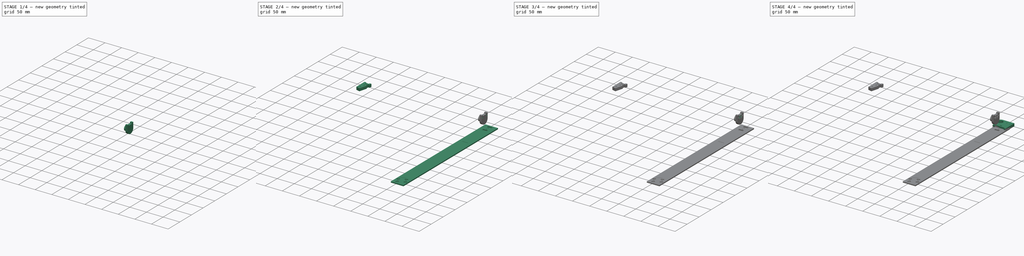
[diagram: build sequence overview — one tinted view per stage of 4, left to right]
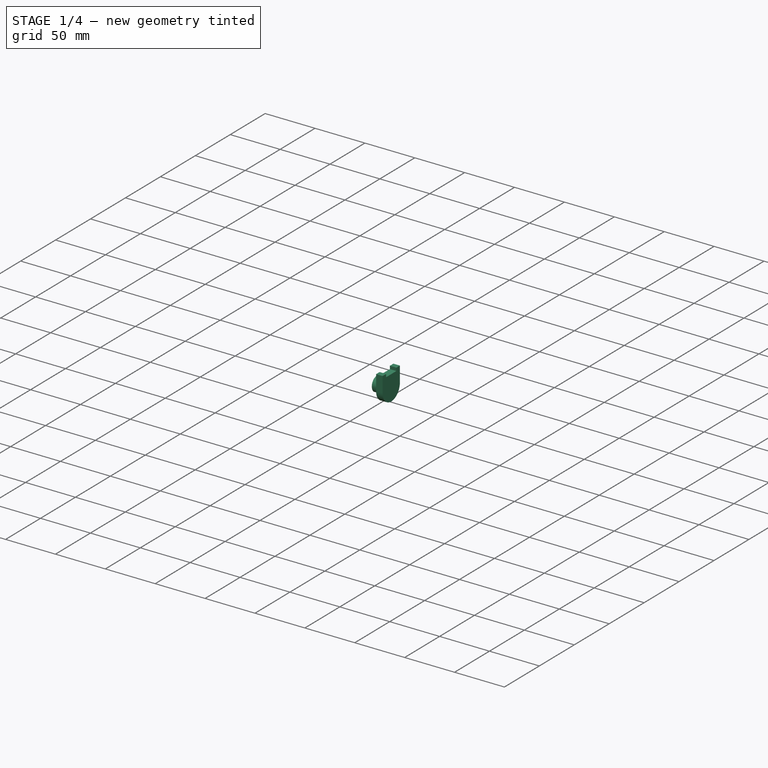
[diagram: stage 1 of 4 — iso view after this stage's code; geometry added in this stage tinted green]
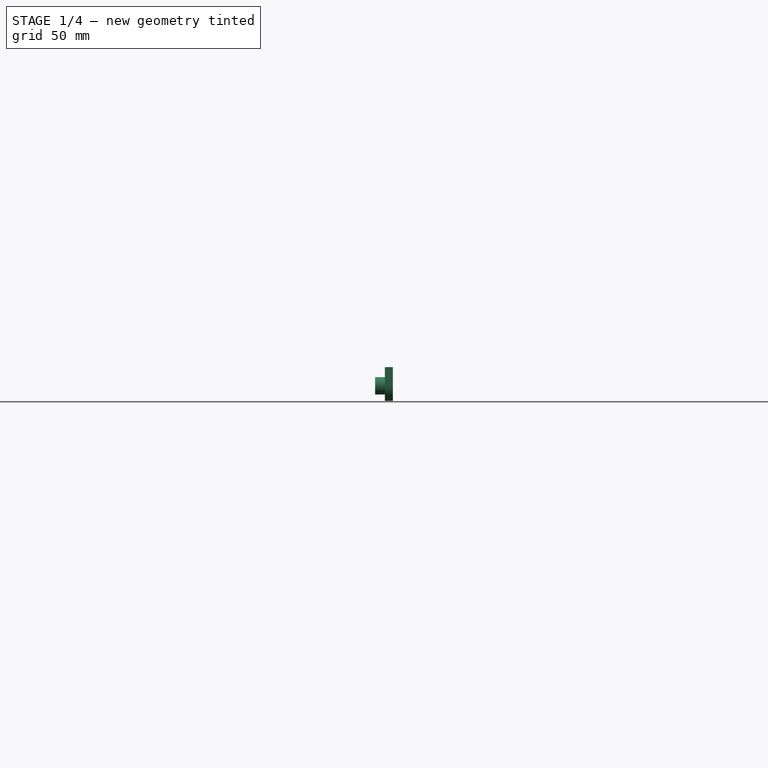
[diagram: stage 1 of 4 — front view after this stage's code; geometry added in this stage tinted green]
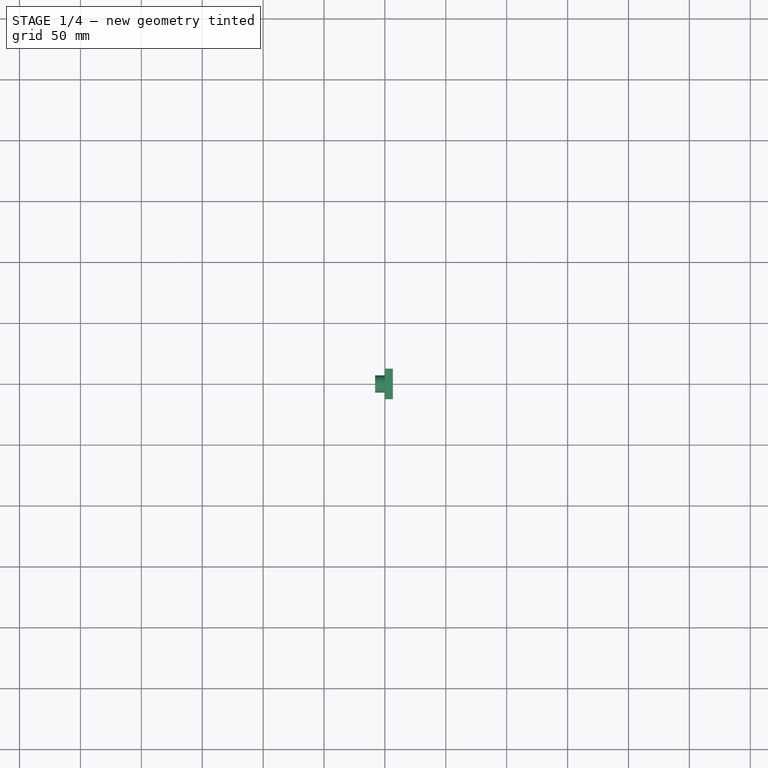
[diagram: stage 1 of 4 — top view after this stage's code; geometry added in this stage tinted green]
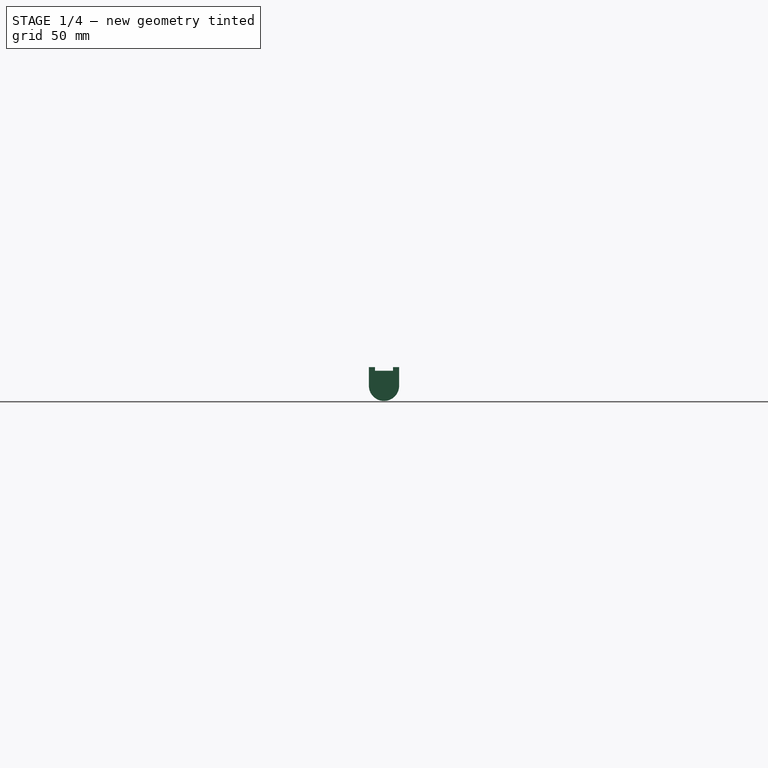
[diagram: stage 1 of 4 — right view after this stage's code; geometry added in this stage tinted green]
FCSTD DOCUMENT  (FreeCAD 0.19R24291 (Git))
Label: ri-hinge01
License: All rights reserved
LicenseURL: http://en.wikipedia.org/wiki/All_rights_reserved
objects: Sketcher::SketchObject×9, PartDesign::Pad×5, PartDesign::Body×4, PartDesign::Pocket×4, PartDesign::Chamfer×1
note: 33 computed .brp shape members not serialized (recipe doc carries the construction recipe); baked Part::Feature solids carry a one-line shape summary decoded from their .brp

FEATURE [PartDesign::Body] Body  label="holder"
  Group = -> [Sketch,Pad]
  Origin = -> Origin
  Tip = -> Pad
FEATURE [Sketcher::SketchObject] Sketch001
  FullyConstrained = true
  MapMode = 5
  Placement = pos=(0,0,0) rot=(0.57735,0.57735,0.57735;2.0944rad)
  Support = -> [YZ_Plane001]
  expr: Constraints[22] = <<Sketch>>.Constraints.distance
  expr: Constraints[14] = <<Sketch>>.Constraints.height + <<Sketch>>.Constraints.baseplate
  expr: Constraints[21] = <<Sketch>>.Constraints.height + <<Sketch>>.Constraints.baseplate - <<Sketch>>.Constraints.distance
  expr: Constraints[15] = <<Sketch>>.Constraints.base
  expr: Constraints[13] = <<Sketch>>.Constraints.baseplate
  sketch-geometry (9):
    g0: LineSegment StartX=12.4 StartY=24.6 StartZ=0 EndX=12.4 EndY=40 EndZ=0
    g1: LineSegment StartX=12.4 StartY=40 StartZ=0 EndX=7.4 EndY=40 EndZ=0
    g2: LineSegment StartX=7.4 StartY=40 StartZ=0 EndX=7.4 EndY=37 EndZ=0
    g3: LineSegment StartX=7.4 StartY=37 StartZ=0 EndX=-7.4 EndY=37 EndZ=0
    g4: LineSegment StartX=-7.4 StartY=37 StartZ=0 EndX=-7.4 EndY=40 EndZ=0
    g5: LineSegment StartX=-7.4 StartY=40 StartZ=0 EndX=-12.4 EndY=40 EndZ=0
    g6: LineSegment StartX=-12.4 StartY=40 StartZ=0 EndX=-12.4 EndY=24.6 EndZ=0
    g7: ArcOfCircle CenterX=0 CenterY=24.6 CenterZ=0 NormalX=0 NormalY=0 NormalZ=1 AngleXU=0 Radius=12.4 StartAngle=3.14159 EndAngle=6.28319
    g8: GeomPoint X=0 Y=24.6 Z=0
  constraints (24):
    c: Vertical(g0)
    c: Coincident(g0,g1)
    c: Horizontal(g1)
    c: Coincident(g1,g2)
    c: Vertical(g2)
    c: Coincident(g2,g3)
    c: Horizontal(g3)
    c: Coincident(g3,g4)
    c: Vertical(g4)
    c: Coincident(g4,g5)
    c: Horizontal(g5)
    c: Equal(g1,g5)
    c: Equal(g2,g4)
    c: DistanceY(g4,g4) = 3
    c: DistanceY(g-1,g3) = 37
    c: DistanceX(g5,g5) = 5
    c: Coincident(g6,g5)
    c: Vertical(g6)
    c: PointOnObject(g7,g-2)
    c: Tangent(g0,g7) = -1.5708
    c: Tangent(g7,g6) = -1.5708
    c: DistanceY(g-1,g8) = 24.6
    c: DistanceX(g8,g0) = 12.4
    c: Coincident(g7,g8)
FEATURE [PartDesign::Pad] Pad001
  Direction = (1,1,1)
  Length = 6.5
  Length2 = 100
  Placement = pos=(0,0,0) rot=(0.57735,0.57735,0.57735;2.0944rad)
  Profile = -> Sketch001
  Refine = true
  Type = 0
  expr: Length = 6.5mm
FEATURE [Sketcher::SketchObject] Sketch002
  FullyConstrained = true
  MapMode = 5
  Placement = pos=(-1e-16,0,0) rot=(0.57735,0.57735,-0.57735;4.18879rad)
  Support = -> [Pad001]
  expr: Constraints[1] = <<Sketch>>.Constraints.diameter - 0.6mm
  expr: Constraints[2] = <<Sketch>>.Constraints.height + <<Sketch>>.Constraints.baseplate - <<Sketch>>.Constraints.distance
  sketch-geometry (1):
    g0: Circle CenterX=0 CenterY=-24.6 CenterZ=0 NormalX=0 NormalY=0 NormalZ=1 AngleXU=0 Radius=7.1
  constraints (3):
    c: PointOnObject(g0,g-2)
    c: Diameter(g0) = 14.2
    c: DistanceY(g0,g-1) = 24.6
FEATURE [PartDesign::Pad] Pad002
  BaseFeature = -> Pad001
  Direction = (1,1,1)
  Length = 8
  Length2 = 100
  Placement = pos=(0,0,0) rot=(0.57735,0.57735,0.57735;2.0944rad)
  Profile = -> Sketch002
  Refine = true
  Type = 0
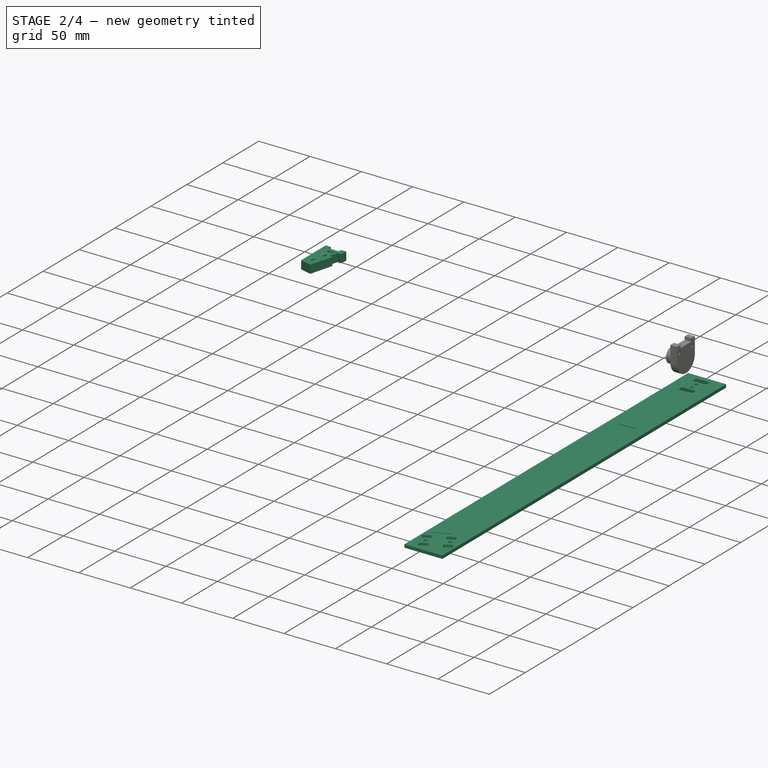
[diagram: stage 2 of 4 — iso view after this stage's code; geometry added in this stage tinted green]
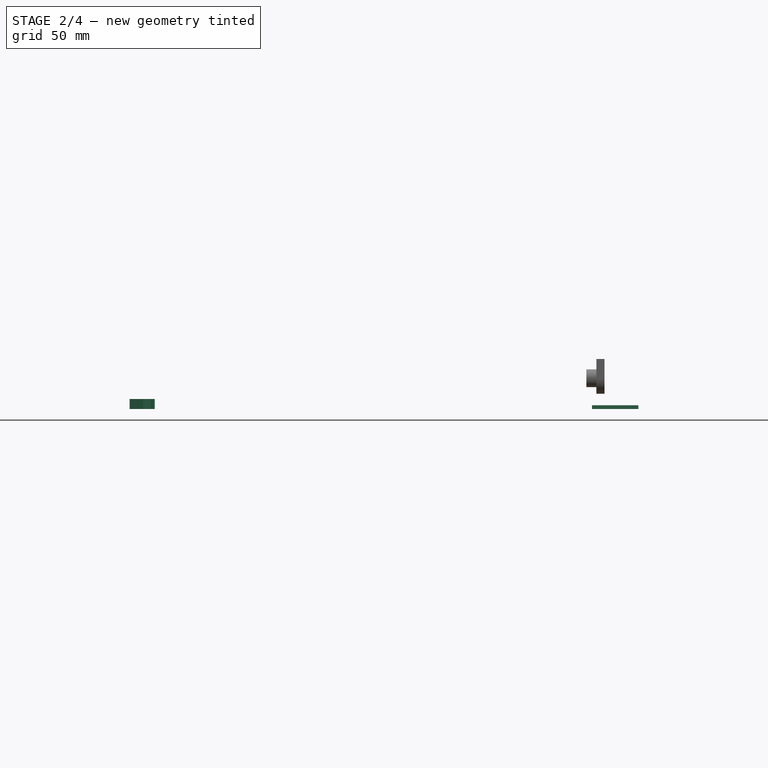
[diagram: stage 2 of 4 — front view after this stage's code; geometry added in this stage tinted green]
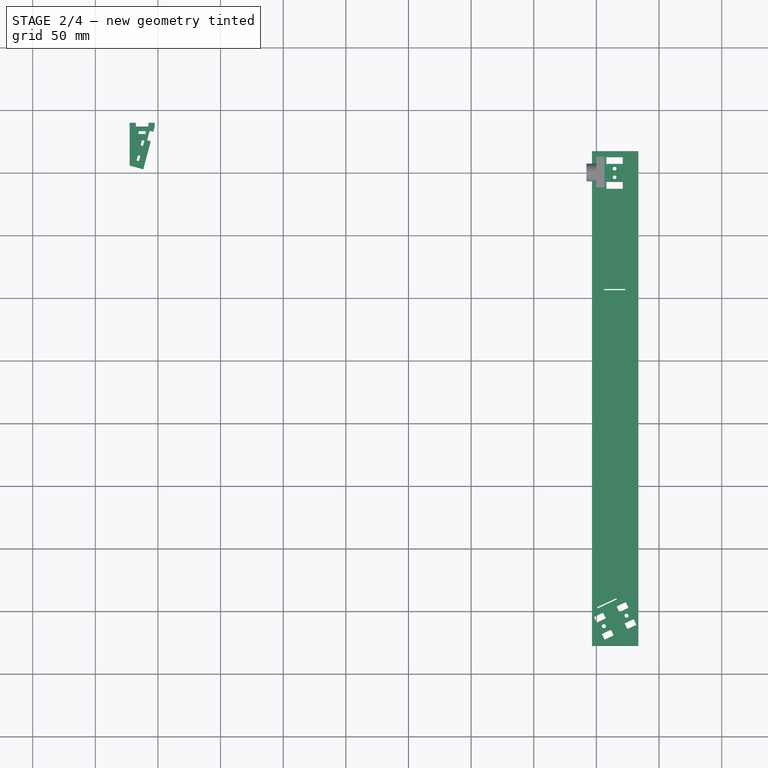
[diagram: stage 2 of 4 — top view after this stage's code; geometry added in this stage tinted green]
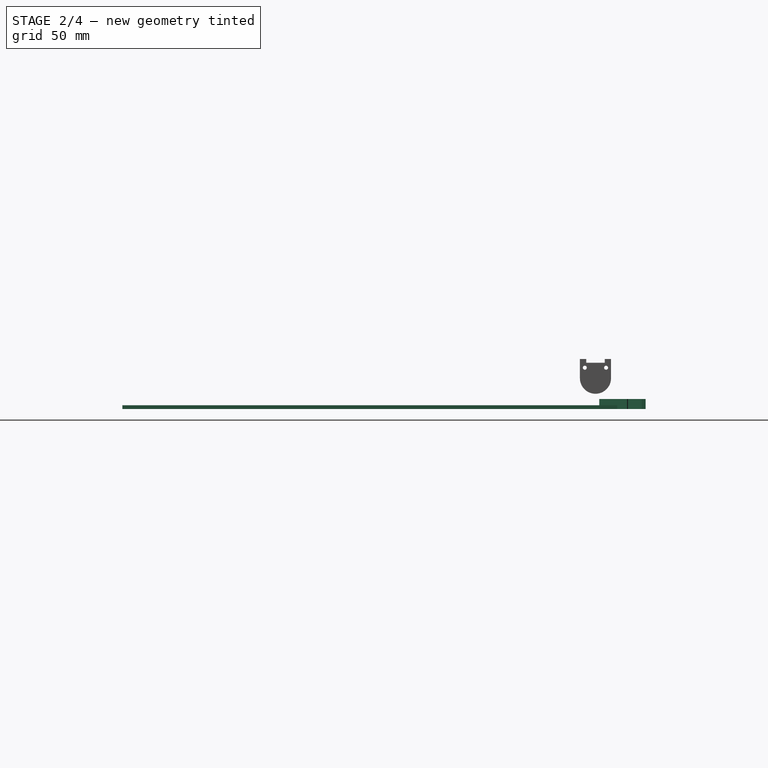
[diagram: stage 2 of 4 — right view after this stage's code; geometry added in this stage tinted green]
FEATURE [Sketcher::SketchObject] Sketch003
  FullyConstrained = true
  MapMode = 5
  Placement = pos=(6.5,-1.4e-15,1.4e-15) rot=(0.57735,0.57735,0.57735;2.0944rad)
  Support = -> [Pad002]
  expr: .Constraints.holeheight = <<Sketch>>.Constraints.height - 1mm
  expr: .Constraints.holewidth = 17mm
  sketch-geometry (2):
    g0: Circle CenterX=8.5 CenterY=33 CenterZ=0 NormalX=0 NormalY=0 NormalZ=1 AngleXU=0 Radius=1.6
    g1: Circle CenterX=-8.5 CenterY=33 CenterZ=0 NormalX=0 NormalY=0 NormalZ=1 AngleXU=0 Radius=1.6
  constraints (5):
    c: Equal(g1,g0)
    c: Diameter(g1) = 3.2  'M3'
    c: Symmetric(g0,g1,g-2)
    c: DistanceX(g1,g0) = 17  'holewidth'
    c: DistanceY(g-1,g0) = 33  'holeheight'
FEATURE [PartDesign::Pocket] Pocket
  BaseFeature = -> Pad002
  Length = 7
  Length2 = 100
  Placement = pos=(0,0,0) rot=(0.57735,0.57735,0.57735;2.0944rad)
  Profile = -> Sketch003
  Refine = true
  Type = 0
FEATURE [PartDesign::Body] Body001  label="hinge"
  Group = -> [Sketch001,Pad001,Sketch002,Pad002,Sketch003,Pocket,Sketch005,Pocket002,Sketch015,Pocket003,Sketch016,Pocket004,Chamfer]
  Origin = -> Origin001
  Placement = pos=(8,0,0) rot=(0,0,1;0rad)
  Tip = -> Chamfer
FEATURE [PartDesign::Pad] Pad003
  Direction = (1,1,1)
  Length = 3
  Length2 = 100
  Profile = -> Sketch008
  Refine = true
  Type = 0
FEATURE [PartDesign::Body] Body002  label="CameraArm"
  Group = -> [Sketch008,Pad003]
  Origin = -> Origin002
  Placement = pos=(0,0,37) rot=(0,0,1;0rad)
  Tip = -> Pad003
  expr: .Placement.Base.z = <<Sketch>>.Constraints.height + <<Sketch>>.Constraints.baseplate
FEATURE [PartDesign::Pad] Pad004
  Direction = (1,1,1)
  Length = 8
  Length2 = 100
  Profile = -> Sketch009
  Refine = true
  Type = 0
FEATURE [PartDesign::Body] Body003  label="CameraHolder"
  Group = -> [Sketch009,Pad004]
  Origin = -> Origin003
  Placement = pos=(-65.3,-5.5,0) rot=(0,0,1;0rad)
  Tip = -> Pad004
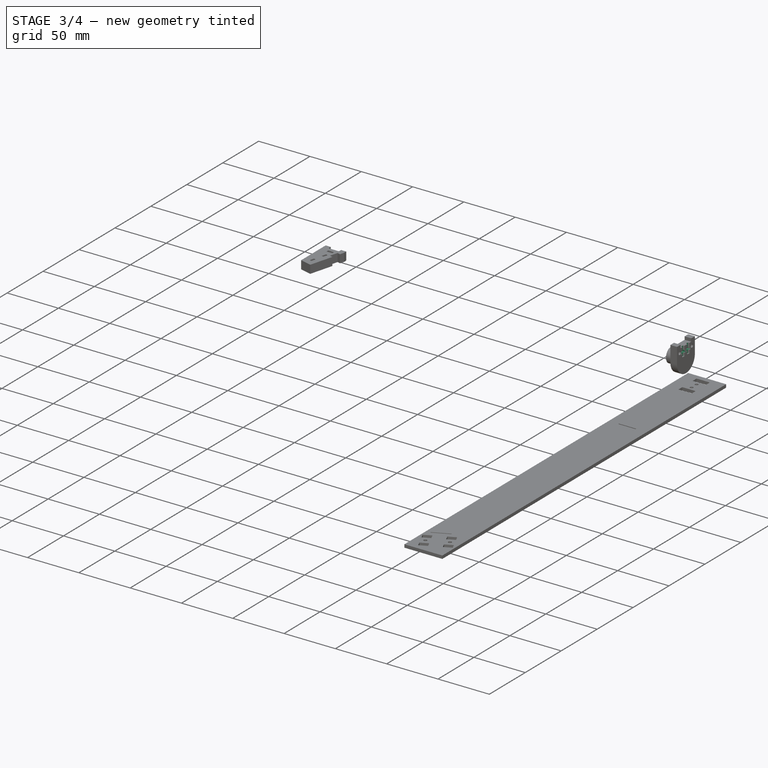
[diagram: stage 3 of 4 — iso view after this stage's code; geometry added in this stage tinted green]
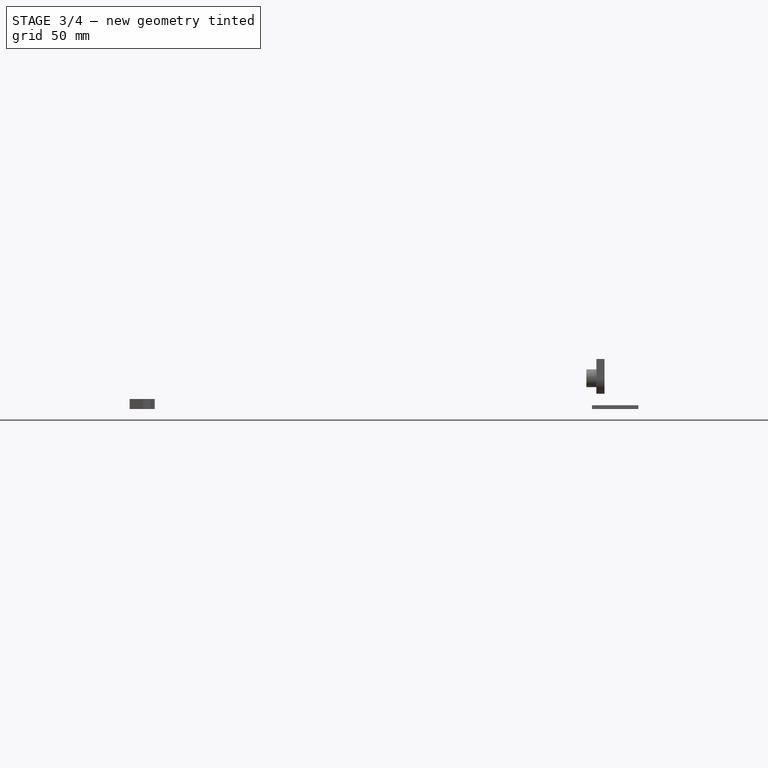
[diagram: stage 3 of 4 — front view after this stage's code; geometry added in this stage tinted green]
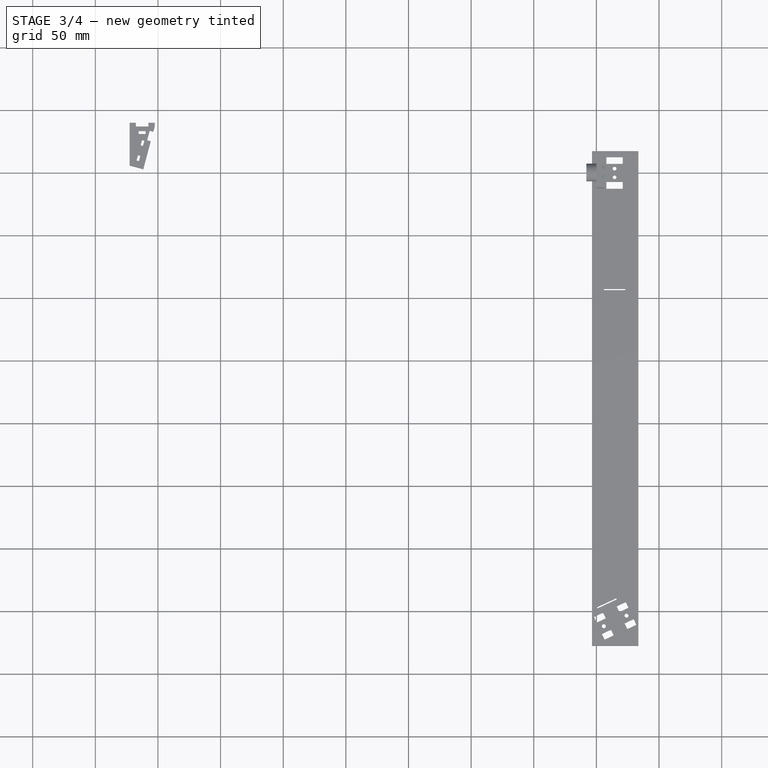
[diagram: stage 3 of 4 — top view after this stage's code; geometry added in this stage tinted green]
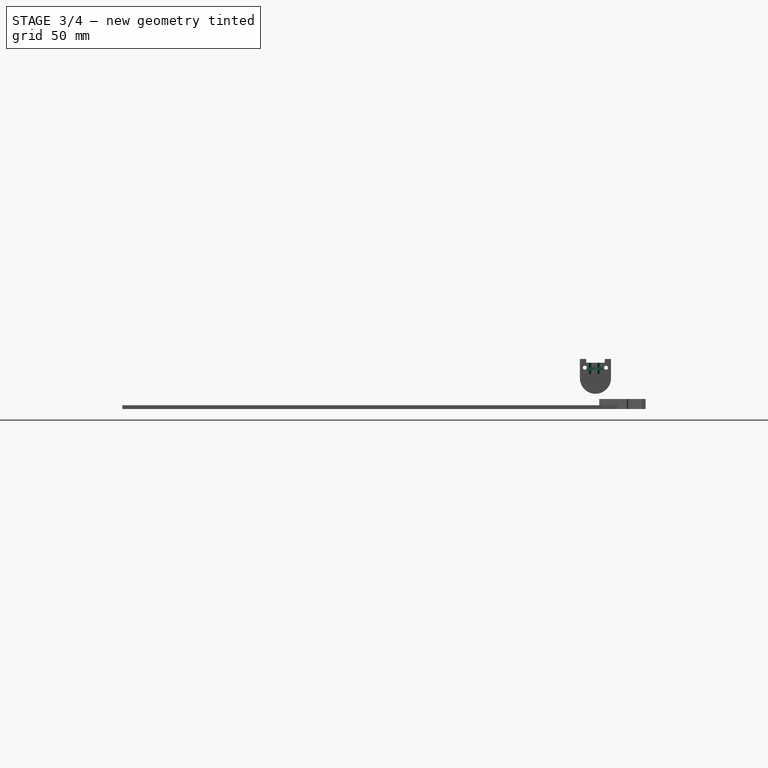
[diagram: stage 3 of 4 — right view after this stage's code; geometry added in this stage tinted green]
FEATURE [Sketcher::SketchObject] Sketch005
  FullyConstrained = true
  MapMode = 5
  Placement = pos=(-5.6e-14,3.6e-14,40) rot=(0,0,-1;1.5708rad)
  expr: Constraints[3] = <<Sketch003>>.Constraints.M3
  expr: Constraints[4] = <<Sketch>>.Constraints.diameter / 2 - 0.5mm
  sketch-geometry (2):
    g0: Circle CenterX=-3.45 CenterY=6.5 CenterZ=0 NormalX=0 NormalY=0 NormalZ=1 AngleXU=0 Radius=1.6
    g1: Circle CenterX=3.45 CenterY=6.5 CenterZ=0 NormalX=0 NormalY=0 NormalZ=1 AngleXU=0 Radius=1.6
  constraints (5):
    c: Symmetric(g1,g0,g-2)
    c: DistanceY(g-1,g1) = 6.5
    c: Equal(g1,g0)
    c: Diameter(g0) = 3.2
    c: DistanceX(g0,g1) = 6.9
FEATURE [PartDesign::Pocket] Pocket002
  BaseFeature = -> Pocket
  Length = 12
  Length2 = 100
  Placement = pos=(0,0,0) rot=(0.57735,0.57735,0.57735;2.0944rad)
  Profile = -> Sketch005
  Refine = true
  Type = 0
FEATURE [Sketcher::SketchObject] Sketch008
  FullyConstrained = true
  MapMode = 5
  Support = -> [XY_Plane002]
  expr: Constraints[22] = <<Sketch>>.Constraints.diameter / 2 - 0.2mm
  expr: Constraints[137] = -.Constraints.hinge_pad
  expr: .Constraints.hinge_pad = <<Sketch>>.Constraints.base + 0.4mm
  expr: Constraints[24] = <<Sketch>>.Constraints.diameter / 2
  expr: Constraints[95] = .Constraints.armlength - 5mm
  expr: Constraints[25] = <<Sketch>>.Constraints.diameter / 2 - 0.5mm
  expr: Constraints[6] = <<Sketch>>.Constraints.distance + 5mm
  expr: Constraints[105] = <<Sketch003>>.Constraints.M3
  expr: Constraints[48] = <<Sketch>>.Constraints.base
  sketch-geometry (52):
    g0: LineSegment StartX=-3.5 StartY=17.4 StartZ=0 EndX=33.5 EndY=17.4 EndZ=0
    g1: LineSegment StartX=33.5 StartY=17.4 StartZ=0 EndX=33.5 EndY=-377.6 EndZ=0
    g2: LineSegment StartX=33.5 StartY=-377.6 StartZ=0 EndX=-3.5 EndY=-377.6 EndZ=0
    g3: LineSegment StartX=-3.5 StartY=-377.6 StartZ=0 EndX=-3.5 EndY=17.4 EndZ=0
    g4: LineSegment StartX=8 StartY=12.6 StartZ=0 EndX=21 EndY=12.6 EndZ=0
    g5: LineSegment StartX=21 StartY=12.6 StartZ=0 EndX=21 EndY=7.2 EndZ=0
    g6: LineSegment StartX=21 StartY=7.2 StartZ=0 EndX=8 EndY=7.2 EndZ=0
    g7: LineSegment StartX=8 StartY=7.2 StartZ=0 EndX=8 EndY=12.6 EndZ=0
    g8: LineSegment StartX=8 StartY=-7.2 StartZ=0 EndX=21 EndY=-7.2 EndZ=0
    g9: LineSegment StartX=21 StartY=-7.2 StartZ=0 EndX=21 EndY=-12.6 EndZ=0
    g10: LineSegment StartX=21 StartY=-12.6 StartZ=0 EndX=8 EndY=-12.6 EndZ=0
    g11: LineSegment StartX=8 StartY=-12.6 StartZ=0 EndX=8 EndY=-7.2 EndZ=0
    g12: Circle CenterX=14.5 CenterY=3.45 CenterZ=0 NormalX=0 NormalY=0 NormalZ=1 AngleXU=0 Radius=1.5
    g13: Circle CenterX=14.5 CenterY=-3.45 CenterZ=0 NormalX=0 NormalY=0 NormalZ=1 AngleXU=0 Radius=1.5
    g14: LineSegment StartX=-1.91449 StartY=-354.474 StartZ=0 EndX=5.33597 EndY=-351.093 EndZ=0
    g15: LineSegment StartX=5.33597 StartY=-351.093 StartZ=0 EndX=7.44906 EndY=-355.624 EndZ=0
    g16: LineSegment StartX=7.44906 StartY=-355.624 StartZ=0 EndX=0.1986 EndY=-359.005 EndZ=0
    g17: LineSegment StartX=0.1986 StartY=-359.005 StartZ=0 EndX=-1.91449 EndY=-354.474 EndZ=0
    g18: LineSegment StartX=4.42478 StartY=-368.068 StartZ=0 EndX=11.6752 EndY=-364.688 EndZ=0
    g19: LineSegment StartX=11.6752 StartY=-364.688 StartZ=0 EndX=13.7883 EndY=-369.219 EndZ=0
    g20: LineSegment StartX=13.7883 StartY=-369.219 StartZ=0 EndX=6.53787 EndY=-372.6 EndZ=0
    g21: LineSegment StartX=6.53787 StartY=-372.6 StartZ=0 EndX=4.42478 EndY=-368.068 EndZ=0
    g22: LineSegment StartX=16.2117 StartY=-346.021 StartZ=0 EndX=23.4621 EndY=-342.641 EndZ=0
    g23: LineSegment StartX=23.4621 StartY=-342.641 StartZ=0 EndX=25.5752 EndY=-347.172 EndZ=0
    g24: LineSegment StartX=25.5752 StartY=-347.172 StartZ=0 EndX=18.3248 EndY=-350.553 EndZ=0
    g25: LineSegment StartX=18.3248 StartY=-350.553 StartZ=0 EndX=16.2117 EndY=-346.021 EndZ=0
    g26: LineSegment StartX=22.5509 StartY=-359.616 StartZ=0 EndX=29.8014 EndY=-356.235 EndZ=0
    g27: LineSegment StartX=29.8014 StartY=-356.235 StartZ=0 EndX=31.9145 EndY=-360.767 EndZ=0
    g28: LineSegment StartX=31.9145 StartY=-360.767 StartZ=0 EndX=24.664 EndY=-364.148 EndZ=0
    g29: LineSegment StartX=24.664 StartY=-364.148 StartZ=0 EndX=22.5509 EndY=-359.616 EndZ=0
    g30: LineSegment StartX=-1.91449 StartY=-354.474 StartZ=0 EndX=23.4621 EndY=-342.641 EndZ=0
    g31: LineSegment StartX=23.4621 StartY=-342.641 StartZ=0 EndX=31.9145 EndY=-360.767 EndZ=0
    g32: LineSegment StartX=31.9145 StartY=-360.767 StartZ=0 EndX=6.53787 EndY=-372.6 EndZ=0
    g33: LineSegment StartX=6.53787 StartY=-372.6 StartZ=0 EndX=-1.91449 EndY=-354.474 EndZ=0
    g34: GeomPoint X=15 Y=-357.62 Z=0
    g35: GeomPoint X=15 Y=-377.6 Z=0
    g36: Circle CenterX=5.93692 CenterY=-361.846 CenterZ=0 NormalX=0 NormalY=0 NormalZ=1 AngleXU=0 Radius=1.6
    g37: Circle CenterX=24.0631 CenterY=-353.394 CenterZ=0 NormalX=0 NormalY=0 NormalZ=1 AngleXU=0 Radius=1.6
    g38: LineSegment StartX=3.82383 StartY=-357.315 StartZ=0 EndX=8.05001 EndY=-366.378 EndZ=0
    g39: LineSegment StartX=21.95 StartY=-348.863 StartZ=0 EndX=26.1762 EndY=-357.926 EndZ=0
    g40: LineSegment StartX=0.534492 StartY=-346.712 StartZ=0 EndX=0.95711 EndY=-347.618 EndZ=0
    g41: LineSegment StartX=0.95711 StartY=-347.618 StartZ=0 EndX=16.3643 EndY=-340.433 EndZ=0
    g42: LineSegment StartX=16.3643 StartY=-340.433 StartZ=0 EndX=15.9417 EndY=-339.527 EndZ=0
    g43: LineSegment StartX=15.9417 StartY=-339.527 StartZ=0 EndX=0.534492 EndY=-346.712 EndZ=0
    g44: GeomPoint X=8.66073 Y=-344.026 Z=0
    g45: GeomPoint X=10.7738 Y=-348.557 Z=0
    g46: LineSegment StartX=6 StartY=-92.6 StartZ=0 EndX=23 EndY=-92.6 EndZ=0
    g47: LineSegment StartX=23 StartY=-92.6 StartZ=0 EndX=23 EndY=-93.6 EndZ=0
    g48: LineSegment StartX=23 StartY=-93.6 StartZ=0 EndX=6 EndY=-93.6 EndZ=0
    g49: LineSegment StartX=6 StartY=-93.6 StartZ=0 EndX=6 EndY=-92.6 EndZ=0
    g50: GeomPoint X=14.5 Y=-92.6 Z=0
    g51: LineSegment StartX=8.66073 StartY=-344.026 StartZ=0 EndX=10.7738 EndY=-348.557 EndZ=0
  constraints (139):
    c: Coincident(g0,g1)
    c: Coincident(g1,g2)
    c: Coincident(g2,g3)
    c: Coincident(g3,g0)
    c: DistanceX(g0,g0) = 37  'armwidth'
    c: DistanceX(g0) = -3.5
    c: DistanceY(g-1,g0) = 17.4
    c: DistanceY(g1,g1) = 395  'armlength'
    c: Coincident(g4,g5)
    c: Coincident(g5,g6)
    c: Coincident(g6,g7)
    c: Coincident(g7,g4)
    c: Coincident(g8,g9)
    c: Coincident(g9,g10)
    c: Coincident(g10,g11)
    c: Coincident(g11,g8)
    c: Equal(g12,g13)
    c: Equal(g6,g8)
    c: DistanceY(g5,g5) = 5.4  'hinge_pad'
    c: DistanceX(g4,g4) = 13
    c: DistanceX(g-1,g6) = 8
    c: Symmetric(g6,g8,g-1)
    c: DistanceY(g-1,g6) = 7.2
    c: DistanceX(g-1,g12) = 14.5
    c: Symmetric(g13,g12,g-1) = 7.4
    c: DistanceY(g13,g12) = 6.9
    c: Diameter(g12) = 3
    c: Coincident(g14,g15)
    c: Coincident(g15,g16)
    c: Coincident(g16,g17)
    c: Coincident(g17,g14)
    c: Coincident(g18,g19)
    c: Coincident(g19,g20)
    c: Coincident(g20,g21)
    c: Coincident(g21,g18)
    c: Coincident(g22,g23)
    c: Coincident(g23,g24)
    c: Coincident(g24,g25)
    c: Coincident(g25,g22)
    c: Coincident(g26,g27)
    c: Coincident(g27,g28)
    c: Coincident(g28,g29)
    c: Coincident(g29,g26)
    c: Equal(g14,g22)
    c: Equal(g22,g18)
    c: Equal(g18,g26)
    c: Equal(g25,g17)
    c: Equal(g17,g21)
    c: Equal(g21,g29) = 5
    c: Perpendicular(g14,g17)
    c: Perpendicular(g14,g15)
    c: Perpendicular(g15,g16)
    c: Perpendicular(g21,g18)
    c: Perpendicular(g18,g19)
    c: Perpendicular(g20,g19)
    c: Perpendicular(g28,g29)
    c: Perpendicular(g27,g28)
    c: Perpendicular(g27,g26)
    c: Perpendicular(g25,g24)
    c: Perpendicular(g23,g22)
    c: Perpendicular(g2,g3)
    c: Perpendicular(g2,g1)
    c: Vertical(g3)
    c: Horizontal(g0)
    c: Parallel(g29,g19)
    c: Parallel(g18,g16)
    c: Vertical(g5)
    c: Vertical(g9)
    c: Horizontal(g8)
    c: Horizontal(g10)
    c: Horizontal(g6)
    c: Horizontal(g4)
    c: Vertical(g11)
    c: Vertical(g7)
    c: Parallel(g25,g15)
    c: Perpendicular(g25,g22)
    c: Distance(g18,g15) = 10
    c: Distance(g26,g24) = 10
    c: Coincident(g30,g31)
    c: Coincident(g31,g32)
    c: Coincident(g32,g33)
    c: Coincident(g33,g30)
    c: Perpendicular(g30,g33)
    c: Perpendicular(g31,g30)
    c: Perpendicular(g32,g31)
    c: Angle(g33,g3) = 2.70526
    c: Parallel(g17,g33)
    c: Distance(g24,g15) = 12
    c: Distance(g26,g18) = 12
    c: PointOnObject(g16,g33)
    c: PointOnObject(g20,g33)
    c: PointOnObject(g26,g31)
    c: PointOnObject(g14,g30)
    c: PointOnObject(g22,g30)
    c: PointOnObject(g19,g32)
    c: DistanceY(g20,g0) = 390
    c: Symmetric(g27,g14,g34)
    c: Symmetric(g1,g2,g35)
    c: Vertical(g34,g35)
    c: Symmetric(g23,g24,g39)
    c: Symmetric(g26,g26,g39)
    c: Symmetric(g15,g16,g38)
    c: Symmetric(g18,g18,g38)
    c: Symmetric(g38,g38,g36)
    c: Symmetric(g39,g39,g37)
    c: Diameter(g36) = 3.2
    c: Equal(g36,g37)
    c: Distance(g14) = 8
    c: Distance(g17) = 5
    c: Coincident(g40,g41)
    c: Coincident(g41,g42)
    c: Coincident(g42,g43)
    c: Coincident(g43,g40)
    c: Parallel(g43,g41)
    c: Parallel(g40,g42)
    c: Parallel(g41,g14)
    c: Perpendicular(g41,g40)
    c: Symmetric(g14,g22,g45)
    c: Symmetric(g40,g41,g44)
    c: Distance(g43) = 17
    c: Distance(g42) = 1
    c: Distance(g44,g45) = 5
    c: Coincident(g46,g47)
    c: Coincident(g47,g48)
    c: Coincident(g48,g49)
    c: Coincident(g49,g46)
    c: Horizontal(g46)
    c: Horizontal(g48)
    c: Vertical(g47)
    c: Vertical(g49)
    c: DistanceX(g48,g48) = 17
    c: DistanceY(g47,g47) = 1
    c: Symmetric(g46,g46,g50)
    c: Vertical(g13,g50)
    c: Coincident(g51,g44)
    c: Coincident(g51,g45)
    c: Perpendicular(g41,g51)
    c: DistanceY(g9,g9) = -5.4
    c: DistanceY(g46,g9) = 80
FEATURE [Sketcher::SketchObject] Sketch009
  FullyConstrained = true
  MapMode = 5
  Support = -> [XY_Plane003]
  expr: Constraints[18] = <<Sketch>>.Constraints.baseplate
  expr: Constraints[34] = <<Sketch>>.Constraints.screw
  expr: Constraints[36] = Sketch008.Constraints.armlength - (<<Sketch>>.Constraints.distance + 10mm)
  expr: Constraints[20] = <<Sketch>>.Constraints.base
  expr: Constraints[29] = <<Sketch>>.Constraints.nutheight
  expr: Constraints[30] = <<Sketch>>.Constraints.nutwidth
  expr: Constraints[35] = .Constraints.middle / 2
  expr: Constraints[37] = <<Sketch>>.Constraints.height + <<Sketch>>.Constraints.baseplate * 2
  sketch-geometry (28):
    g0: LineSegment StartX=-372.6 StartY=40 StartZ=0 EndX=-372.6 EndY=5.91789 EndZ=0
    g1: LineSegment StartX=-372.6 StartY=5.91789 StartZ=0 EndX=-361.71 EndY=3 EndZ=0
    g2: LineSegment StartX=-361.71 StartY=3 StartZ=0 EndX=-355.757 EndY=25.2163 EndZ=0
    g3: LineSegment StartX=-352.6 StartY=37 StartZ=0 EndX=-352.6 EndY=40 EndZ=0
    g4: LineSegment StartX=-352.6 StartY=40 StartZ=0 EndX=-357.6 EndY=40 EndZ=0
    g5: LineSegment StartX=-357.6 StartY=40 StartZ=0 EndX=-357.6 EndY=37 EndZ=0
    g6: LineSegment StartX=-357.6 StartY=37 StartZ=0 EndX=-367.6 EndY=37 EndZ=0
    g7: LineSegment StartX=-367.6 StartY=37 StartZ=0 EndX=-367.6 EndY=40 EndZ=0
    g8: LineSegment StartX=-367.6 StartY=40 StartZ=0 EndX=-372.6 EndY=40 EndZ=0
    g9: LineSegment StartX=-365.4 StartY=33.4 StartZ=0 EndX=-359.8 EndY=33.4 EndZ=0
    g10: LineSegment StartX=-359.8 StartY=33.4 StartZ=0 EndX=-359.8 EndY=31 EndZ=0
    g11: LineSegment StartX=-359.8 StartY=31 StartZ=0 EndX=-365.4 EndY=31 EndZ=0
    g12: LineSegment StartX=-365.4 StartY=31 StartZ=0 EndX=-365.4 EndY=33.4 EndZ=0
    g13: GeomPoint X=-362.6 Y=31 Z=0
    g14: LineSegment StartX=-362.713 StartY=26.3036 StartZ=0 EndX=-360.781 EndY=25.7859 EndZ=0
    g15: LineSegment StartX=-360.781 StartY=25.7859 StartZ=0 EndX=-361.946 EndY=21.4393 EndZ=0
    g16: LineSegment StartX=-361.946 StartY=21.4393 StartZ=0 EndX=-363.878 EndY=21.9569 EndZ=0
    g17: LineSegment StartX=-363.878 StartY=21.9569 StartZ=0 EndX=-362.713 EndY=26.3036 EndZ=0
    g18: LineSegment StartX=-365.948 StartY=14.2295 StartZ=0 EndX=-364.016 EndY=13.7119 EndZ=0
    g19: LineSegment StartX=-364.016 StartY=13.7119 StartZ=0 EndX=-365.181 EndY=9.36521 EndZ=0
    g20: LineSegment StartX=-365.181 StartY=9.36521 StartZ=0 EndX=-367.113 EndY=9.88284 EndZ=0
    g21: LineSegment StartX=-367.113 StartY=9.88284 StartZ=0 EndX=-365.948 EndY=14.2295 EndZ=0
    g22: LineSegment StartX=-361.364 StartY=23.6126 StartZ=0 EndX=-356.534 EndY=22.3185 EndZ=0
    g23: LineSegment StartX=-364.599 StartY=11.5385 StartZ=0 EndX=-359.769 EndY=10.2444 EndZ=0
    g24: LineSegment StartX=-353.687 StartY=32.9437 StartZ=0 EndX=-356.585 EndY=33.7202 EndZ=0
    g25: LineSegment StartX=-356.585 StartY=33.7202 StartZ=0 EndX=-358.655 EndY=25.9928 EndZ=0
    g26: LineSegment StartX=-358.655 StartY=25.9928 StartZ=0 EndX=-355.757 EndY=25.2163 EndZ=0
    g27: LineSegment StartX=-353.687 StartY=32.9437 StartZ=0 EndX=-352.6 EndY=37 EndZ=0
  constraints (81):
    c: Vertical(g0)
    c: Coincident(g0,g1)
    c: Coincident(g1,g2)
    c: Coincident(g27,g3)
    c: Vertical(g3)
    c: Coincident(g3,g4)
    c: Horizontal(g4)
    c: Coincident(g4,g5)
    c: Vertical(g5)
    c: Coincident(g5,g6)
    c: Horizontal(g6)
    c: Coincident(g6,g7)
    c: Vertical(g7)
    c: Coincident(g7,g8)
    c: Coincident(g8,g0)
    c: Horizontal(g8)
    c: Equal(g7,g5)
    c: Equal(g5,g3)
    c: DistanceY(g7,g7) = 3
    c: Equal(g8,g4)
    c: DistanceX(g8,g8) = 5
    c: Angle(g6,g2) = 1.309  'angle'
    c: Coincident(g10,g11)
    c: Coincident(g11,g12)
    c: Coincident(g12,g9)
    c: Horizontal(g9)
    c: Horizontal(g11)
    c: Vertical(g10)
    c: Vertical(g12)
    c: DistanceY(g12,g12) = 2.4
    c: DistanceX(g9,g9) = 5.6
    c: Symmetric(g10,g11,g13)
    c: DistanceX(g6,g6) = 10  'middle'
    c: Coincident(g9,g10)
    c: DistanceY(g13,g4) = 9
    c: DistanceX(g13,g5) = 5
    c: DistanceX(g0,g-1) = 372.6
    c: DistanceY(g-1,g3) = 40
    c: Perpendicular(g2,g1)
    c: DistanceY(g1,g5) = 34
    c: Coincident(g14,g15)
    c: Coincident(g15,g16)
    c: Coincident(g16,g17)
    c: Coincident(g17,g14)
    c: Coincident(g18,g19)
    c: Coincident(g19,g20)
    c: Coincident(g20,g21)
    c: Coincident(g21,g18)
    c: Equal(g19,g15)
    c: Equal(g16,g20)
    c: Perpendicular(g14,g17)
    c: Perpendicular(g15,g16)
    c: Perpendicular(g17,g16)
    c: Perpendicular(g20,g19)
    c: Perpendicular(g21,g20)
    c: Perpendicular(g18,g21)
    c: Parallel(g19,g2)
    c: Parallel(g15,g2)
    c: PointOnObject(g22,g2)
    c: PointOnObject(g23,g2)
    c: Perpendicular(g23,g2)
    c: Perpendicular(g22,g2)
    c: Equal(g22,g23)
    c: Symmetric(g14,g15,g22)
    c: Symmetric(g18,g19,g23)
    c: Distance(g23,g22) = 12.5
    c: Distance(g23,g1) = 7.5
    c: Distance(g23) = 5
    c: Distance(g20) = 2
    c: Distance(g21) = 4.5
    c: Coincident(g24,g25)
    c: Coincident(g25,g26)
    c: Perpendicular(g24,g25)
    c: Perpendicular(g24,g2)
    c: Perpendicular(g2,g26)
    c: Coincident(g2,g26)
    c: Coincident(g27,g24)
    c: Tangent(g2,g27)
    c: Distance(g24) = 3
    c: Distance(g25) = 8
    c: Distance(g22,g2) = 3
FEATURE [Sketcher::SketchObject] Sketch015
  FullyConstrained = true
  MapMode = 5
  Placement = pos=(6.5,-1.4e-15,1.4e-15) rot=(0.57735,0.57735,0.57735;2.0944rad)
  Support = -> [Pocket002]
  sketch-geometry (10):
    g0: LineSegment StartX=-6.55 StartY=33.4 StartZ=0 EndX=-0.45 EndY=33.4 EndZ=0
    g1: LineSegment StartX=-0.45 StartY=33.4 StartZ=0 EndX=-0.45 EndY=31 EndZ=0
    g2: LineSegment StartX=-0.45 StartY=31 StartZ=0 EndX=-6.55 EndY=31 EndZ=0
    g3: LineSegment StartX=-6.55 StartY=31 StartZ=0 EndX=-6.55 EndY=33.4 EndZ=0
    g4: LineSegment StartX=0.45 StartY=33.4 StartZ=0 EndX=6.55 EndY=33.4 EndZ=0
    g5: LineSegment StartX=6.55 StartY=33.4 StartZ=0 EndX=6.55 EndY=31 EndZ=0
    g6: LineSegment StartX=6.55 StartY=31 StartZ=0 EndX=0.45 EndY=31 EndZ=0
    g7: LineSegment StartX=0.45 StartY=31 StartZ=0 EndX=0.45 EndY=33.4 EndZ=0
    g8: GeomPoint X=-3.5 Y=33.4 Z=0
    g9: GeomPoint X=3.5 Y=33.4 Z=0
  constraints (25):
    c: Coincident(g0,g1)
    c: Coincident(g1,g2)
    c: Coincident(g2,g3)
    c: Coincident(g3,g0)
    c: Horizontal(g0)
    c: Horizontal(g2)
    c: Vertical(g1)
    c: Vertical(g3)
    c: Coincident(g4,g5)
    c: Coincident(g5,g6)
    c: Coincident(g6,g7)
    c: Coincident(g7,g4)
    c: Horizontal(g4)
    c: Horizontal(g6)
    c: Vertical(g5)
    c: Vertical(g7)
    c: Equal(g0,g4)
    c: DistanceX(g0,g0) = 6.1
    c: DistanceY(g3,g3) = 2.4
    c: Symmetric(g0,g4,g-2)
    c: Equal(g7,g3)
    c: Symmetric(g0,g0,g8)
    c: Symmetric(g4,g4,g9)
    c: DistanceX(g8,g9) = 7
    c: DistanceY(g-1,g2) = 31
FEATURE [PartDesign::Pocket] Pocket003
  BaseFeature = -> Pocket002
  Length = 3
  Length2 = 100
  Placement = pos=(0,0,0) rot=(0.57735,0.57735,0.57735;2.0944rad)
  Profile = -> Sketch015
  Refine = true
  Type = 0
FEATURE [Sketcher::SketchObject] Sketch016
  FullyConstrained = true
  MapMode = 5
  Placement = pos=(-1e-16,0,0) rot=(0.57735,0.57735,-0.57735;4.18879rad)
  Support = -> [Pocket003]
  sketch-geometry (5):
    g0: LineSegment StartX=-11.3 StartY=-30.2 StartZ=0 EndX=-5.7 EndY=-30.2 EndZ=0
    g1: LineSegment StartX=-5.7 StartY=-30.2 StartZ=0 EndX=-5.7 EndY=-35.8 EndZ=0
    g2: LineSegment StartX=-5.7 StartY=-35.8 StartZ=0 EndX=-11.3 EndY=-35.8 EndZ=0
    g3: LineSegment StartX=-11.3 StartY=-35.8 StartZ=0 EndX=-11.3 EndY=-30.2 EndZ=0
    g4: GeomPoint X=-8.5 Y=-33 Z=0
  constraints (13):
    c: Coincident(g0,g1)
    c: Coincident(g1,g2)
    c: Coincident(g2,g3)
    c: Coincident(g3,g0)
    c: Horizontal(g0)
    c: Horizontal(g2)
    c: Vertical(g1)
    c: Vertical(g3)
    c: Equal(g0,g1)
    c: Symmetric(g0,g2,g4)
    c: DistanceX(g0,g0) = 5.6
    c: DistanceX(g4,g-1) = 8.5
    c: DistanceY(g4,g-1) = 33
FEATURE [PartDesign::Pocket] Pocket004
  BaseFeature = -> Pocket003
  Length = 2
  Length2 = 100
  Placement = pos=(0,0,0) rot=(0.57735,0.57735,0.57735;2.0944rad)
  Profile = -> Sketch016
  Refine = true
  Type = 0
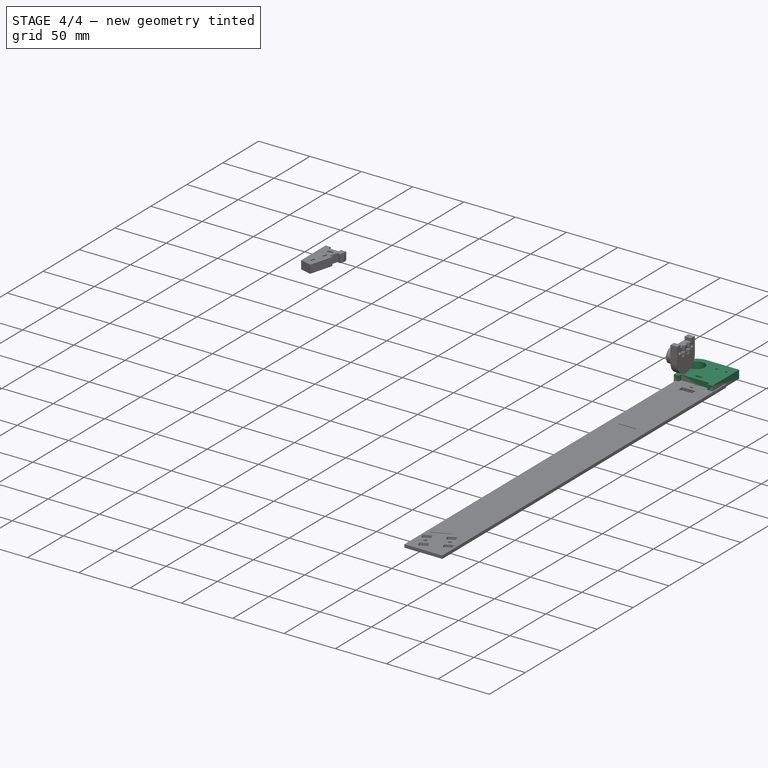
[diagram: stage 4 of 4 — iso view after this stage's code; geometry added in this stage tinted green]
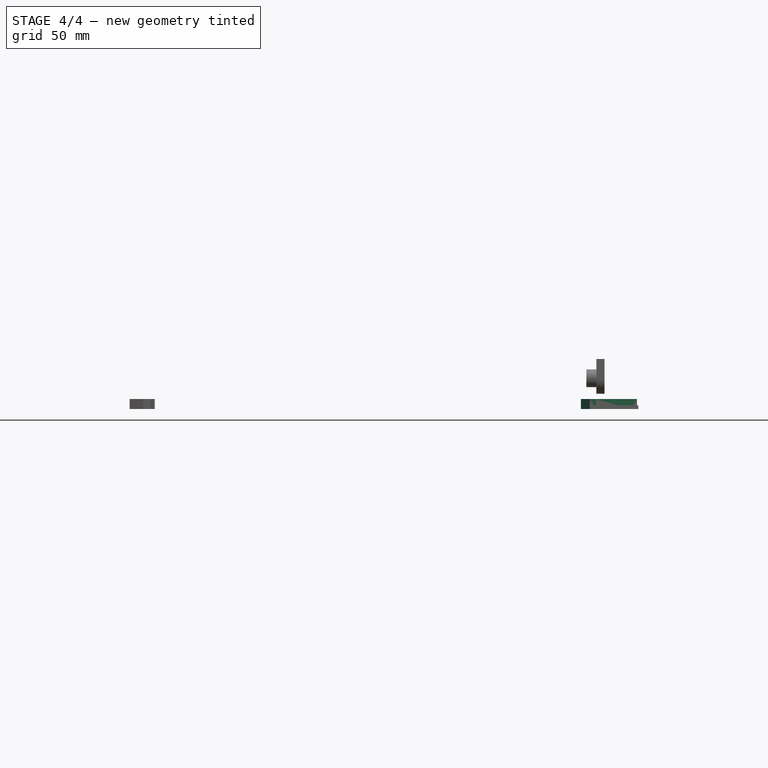
[diagram: stage 4 of 4 — front view after this stage's code; geometry added in this stage tinted green]
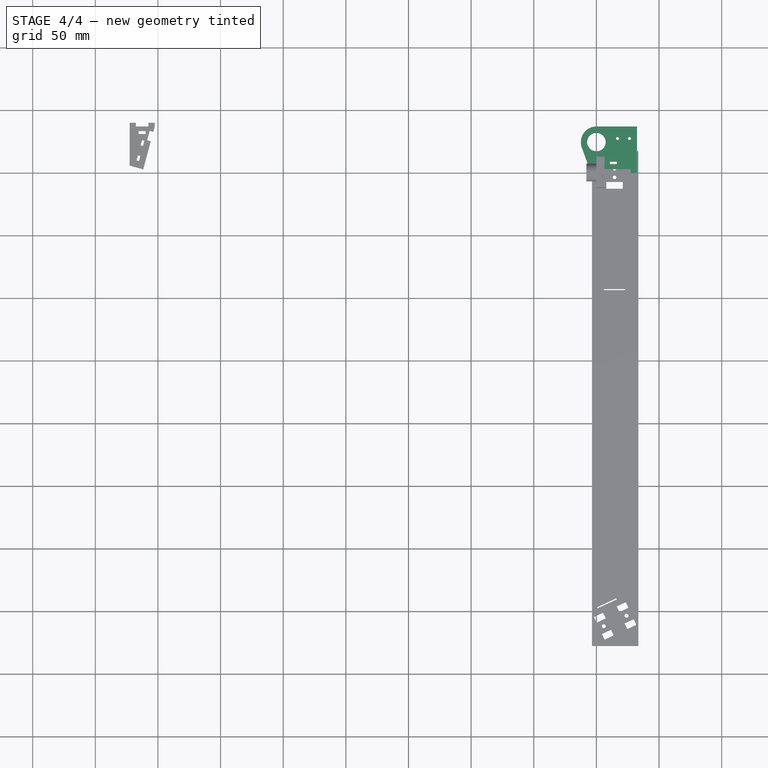
[diagram: stage 4 of 4 — top view after this stage's code; geometry added in this stage tinted green]
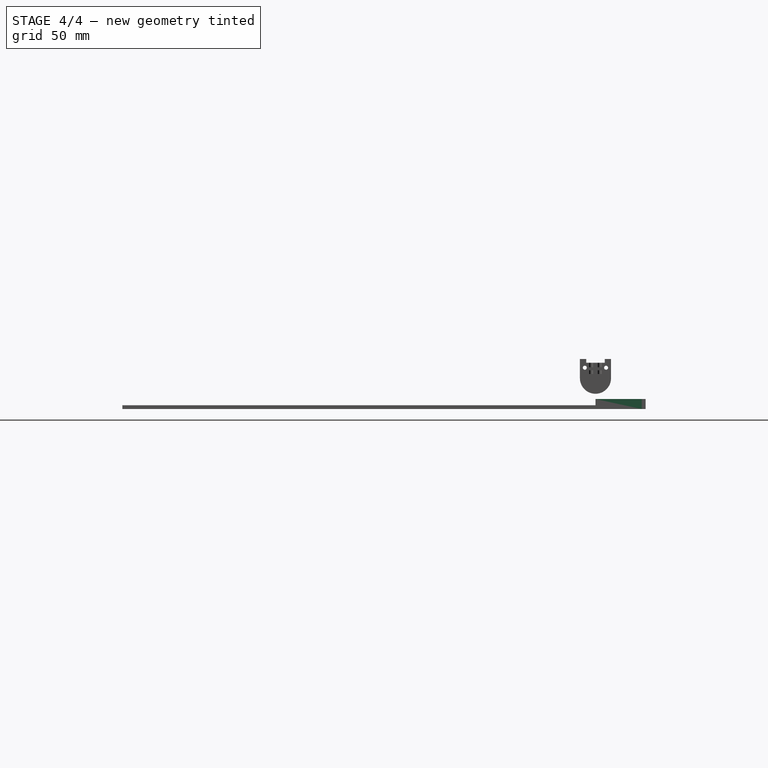
[diagram: stage 4 of 4 — right view after this stage's code; geometry added in this stage tinted green]
FEATURE [Sketcher::SketchObject] Sketch
  FullyConstrained = true
  MapMode = 5
  Support = -> [XY_Plane]
  expr: Constraints[40] = .Constraints.distance
  expr: Constraints[36] = .Constraints.distance
  expr: Constraints[50] = .Constraints.switchdistance
  expr: Constraints[35] = .Constraints.distance + 20mm
  expr: .Constraints.distance = .Constraints.diameter / 2 + 5mm
  expr: .Constraints.screw = 9
  sketch-geometry (18):
    g0: LineSegment StartX=-5.33405 StartY=0 StartZ=0 EndX=-0.334047 EndY=0 EndZ=0
    g1: LineSegment StartX=-0.334047 StartY=0 StartZ=0 EndX=-0.334047 EndY=3 EndZ=0
    g2: LineSegment StartX=-0.334047 StartY=3 StartZ=0 EndX=27.4 EndY=3 EndZ=0
    g3: LineSegment StartX=27.4 StartY=3 StartZ=0 EndX=27.4 EndY=0 EndZ=0
    g4: LineSegment StartX=27.4 StartY=0 StartZ=0 EndX=32.4 EndY=0 EndZ=0
    g5: LineSegment StartX=32.4 StartY=0 StartZ=0 EndX=32.4 EndY=37 EndZ=0
    g6: LineSegment StartX=32.4 StartY=37 StartZ=0 EndX=5.0898e-06 EndY=37 EndZ=0
    g7: LineSegment StartX=10.733 StartY=9 StartZ=0 EndX=16.333 EndY=9 EndZ=0
    g8: LineSegment StartX=16.333 StartY=9 StartZ=0 EndX=16.333 EndY=6.6 EndZ=0
    g9: LineSegment StartX=16.333 StartY=6.6 StartZ=0 EndX=10.733 EndY=6.6 EndZ=0
    g10: LineSegment StartX=10.733 StartY=6.6 StartZ=0 EndX=10.733 EndY=9 EndZ=0
    g11: Circle CenterX=0 CenterY=24.6 CenterZ=0 NormalX=0 NormalY=0 NormalZ=1 AngleXU=0 Radius=7.4
    g12: LineSegment StartX=-11.6522 StartY=20.3589 StartZ=0 EndX=-5.33405 EndY=3 EndZ=0
    g13: LineSegment StartX=-5.33405 StartY=3 StartZ=0 EndX=-5.33405 EndY=0 EndZ=0
    g14: ArcOfCircle CenterX=5.0898e-06 CenterY=24.6 CenterZ=0 NormalX=0 NormalY=0 NormalZ=1 AngleXU=0 Radius=12.4 StartAngle=1.5708 EndAngle=3.49066
    g15: LineSegment StartX=13.533 StartY=0 StartZ=0 EndX=13.533 EndY=9 EndZ=0
    g16: Circle CenterX=16.9 CenterY=27.5 CenterZ=0 NormalX=0 NormalY=0 NormalZ=1 AngleXU=0 Radius=1.25
    g17: Circle CenterX=26.4 CenterY=27.5 CenterZ=0 NormalX=0 NormalY=0 NormalZ=1 AngleXU=0 Radius=1.25
  constraints (52):
    c: PointOnObject(g0,g-1)
    c: PointOnObject(g0,g-1)
    c: Coincident(g0,g1)
    c: Vertical(g1)
    c: Coincident(g1,g2)
    c: Horizontal(g2)
    c: Coincident(g2,g3)
    c: PointOnObject(g3,g-1)
    c: Vertical(g3)
    c: Coincident(g3,g4)
    c: PointOnObject(g4,g-1)
    c: Coincident(g4,g5)
    c: Vertical(g5)
    c: Coincident(g5,g6)
    c: Horizontal(g6)
    c: Coincident(g7,g8)
    c: Coincident(g8,g9)
    c: Coincident(g9,g10)
    c: Coincident(g10,g7)
    c: Horizontal(g7)
    c: Vertical(g8)
    c: Vertical(g10)
    c: PointOnObject(g11,g-2)
    c: Diameter(g11) = 14.8  'diameter'
    c: DistanceY(g2,g5) = 34  'height'
    c: DistanceY(g1,g1) = 3  'baseplate'
    c: Equal(g0,g4)
    c: Coincident(g12,g13)
    c: Coincident(g13,g0)
    c: Vertical(g13)
    c: Equal(g13,g1)
    c: DistanceX(g9,g9) = 5.6  'nutwidth'
    c: DistanceY(g8,g8) = 2.4  'nutheight'
    c: DistanceY(g3,g7) = 9  'screw'
    c: DistanceY(g11,g5) = 12.4  'distance'
    c: DistanceX(g11,g5) = 32.4
    c: Distance(g11,g12) = 12.4
    c: Angle(g2,g12) = 1.91986  'angle'
    c: Tangent(g6,g14) = -1.5708
    c: Tangent(g12,g14) = -1.5708
    c: Distance(g11,g12) = 12.4
    c: DistanceX(g0,g0) = 5  'base'
    c: Symmetric(g3,g0,g15)
    c: Symmetric(g8,g9,g15)
    c: PointOnObject(g15,g7)
    c: PointOnObject(g15,g-1)
    c: Equal(g16,g17)
    c: Horizontal(g16,g17)
    c: DistanceX(g16,g17) = 9.5  'switchdistance'
    c: Diameter(g16) = 2.5  'switchdiameter'
    c: DistanceY(g17,g5) = 9.5
    c: DistanceX(g17,g5) = 6
FEATURE [PartDesign::Pad] Pad
  Direction = (1,1,1)
  Length = 8
  Length2 = 100
  Profile = -> Sketch
  Refine = true
  Type = 0
FEATURE [PartDesign::Chamfer] Chamfer
  Angle = 45
  Base = -> Pocket004 [Edge17]
  BaseFeature = -> Pocket004
  ChamferType = 0
  FlipDirection = false
  Placement = pos=(0,0,0) rot=(0.57735,0.57735,0.57735;2.0944rad)
  Refine = true
  Size = 1.7
  Size2 = 1
  SupportTransform = false
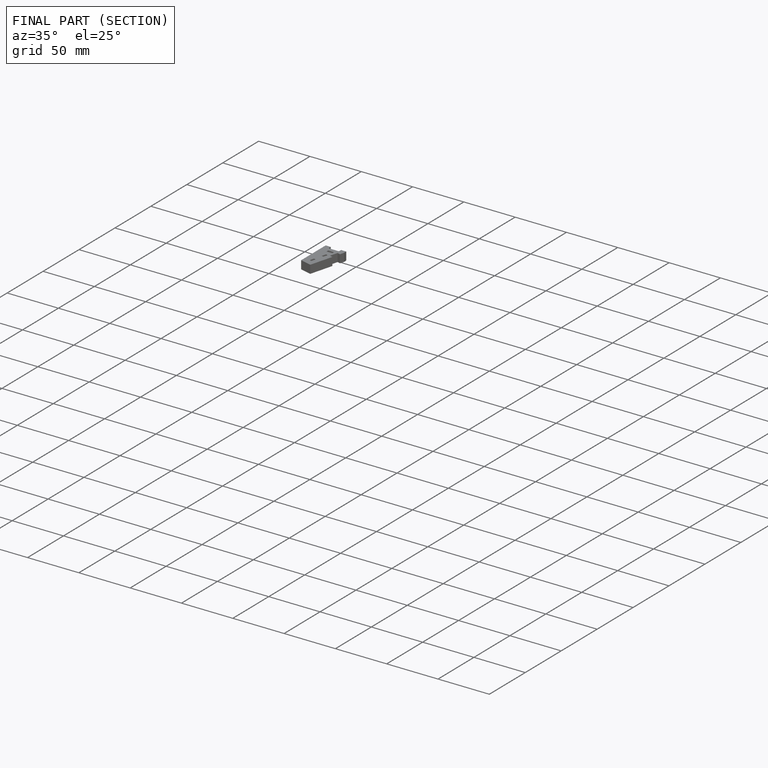
[diagram: finished part — half-section view (interior)]
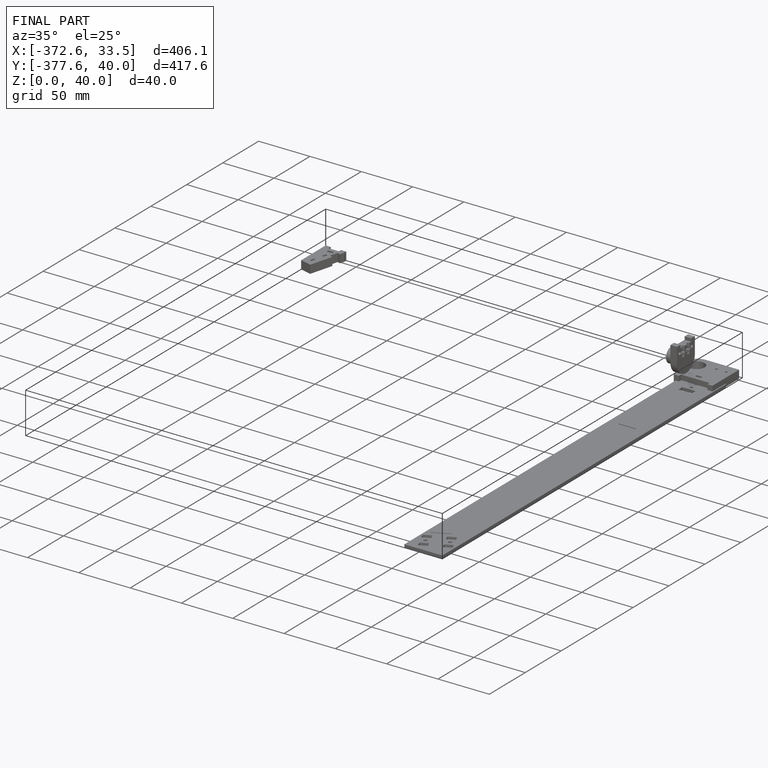
[diagram: finished part — iso view with bounding-box wireframe]
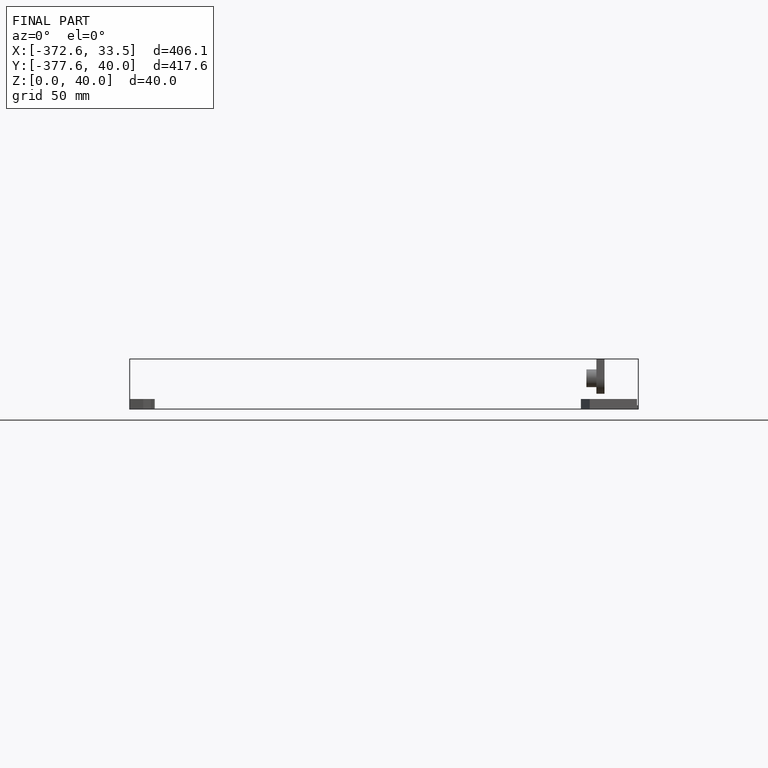
[diagram: finished part — front view with bounding-box wireframe]
